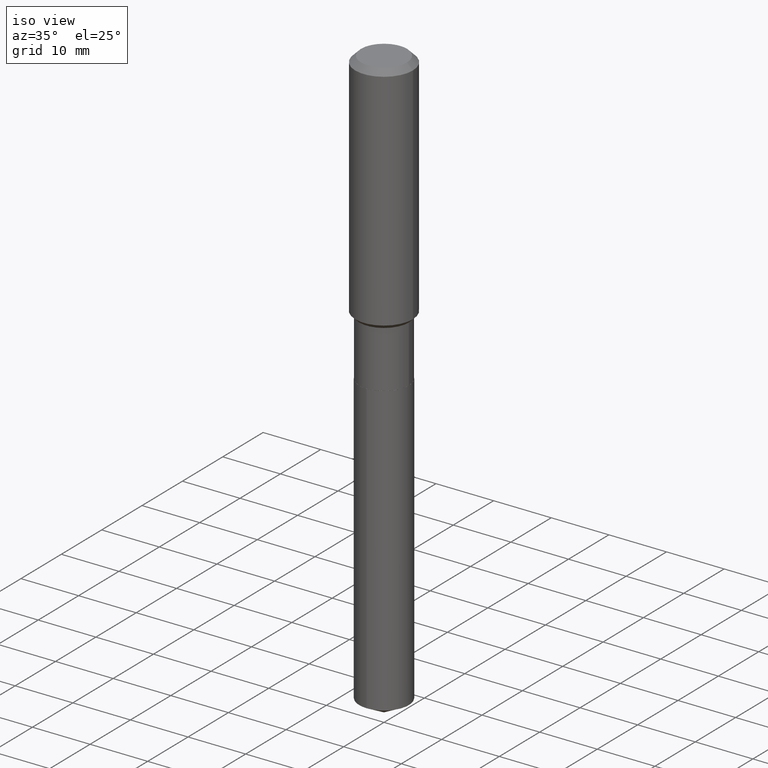
[diagram: clean part render]
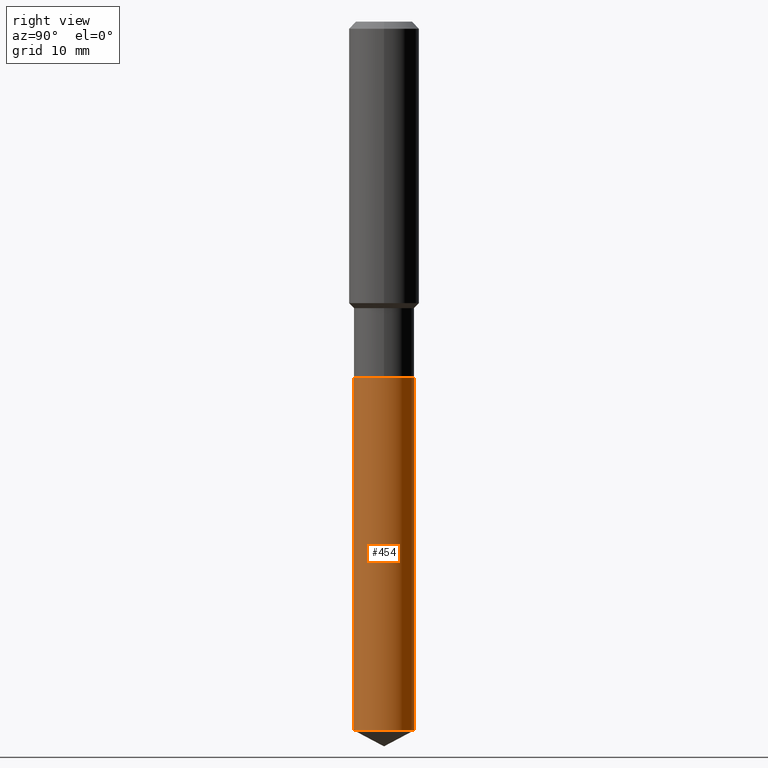
[diagram: tour spotlight — one face highlighted and labeled with its STEP entity id]
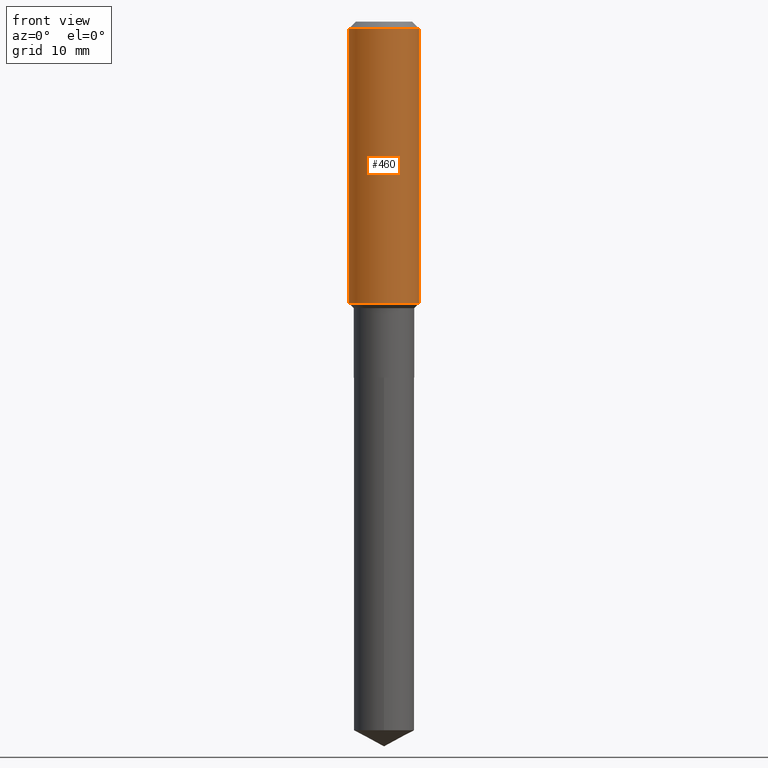
[diagram: tour spotlight — one face highlighted and labeled with its STEP entity id]
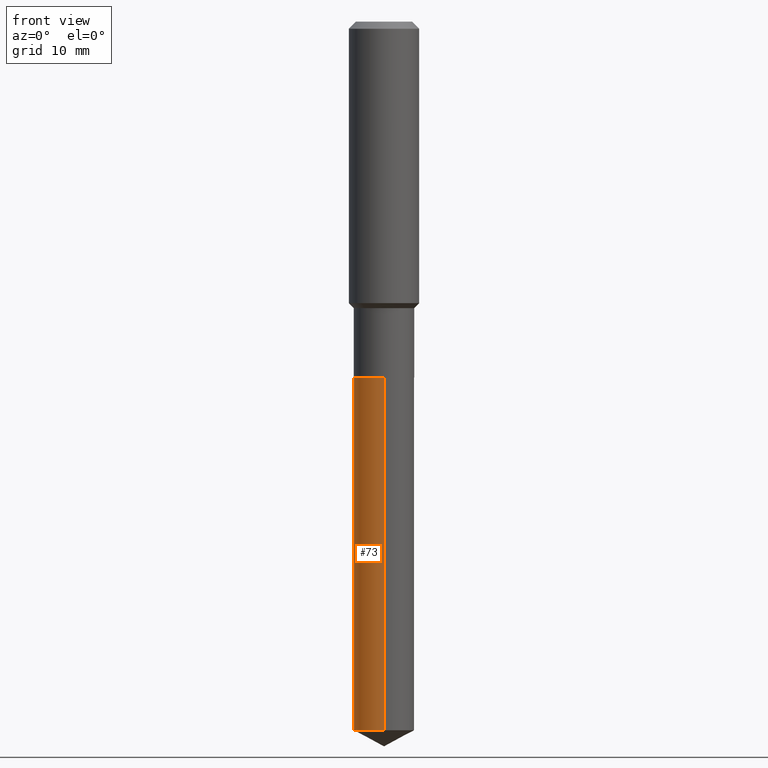
[diagram: tour spotlight — one face highlighted and labeled with its STEP entity id]
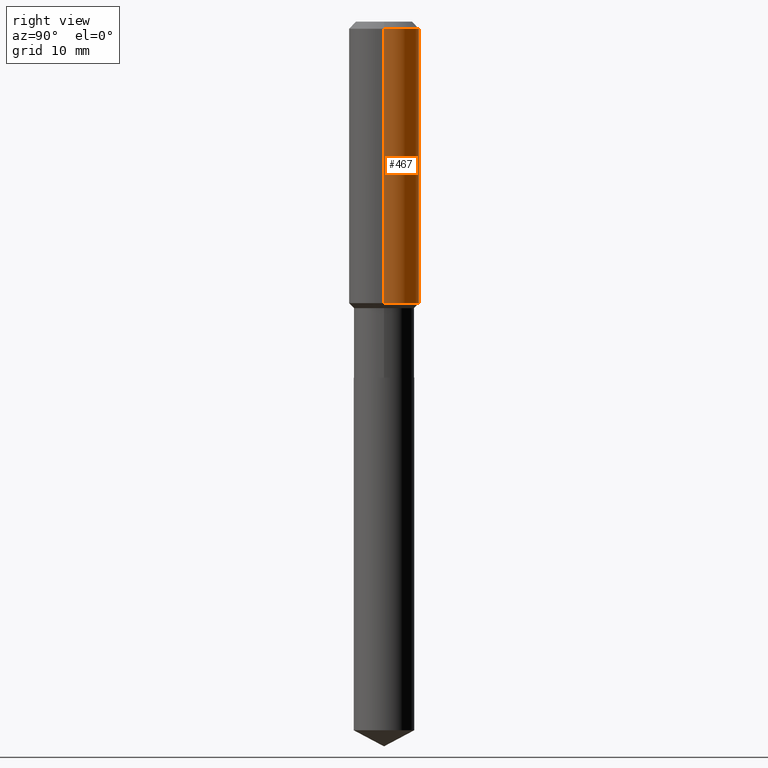
[diagram: tour spotlight — one face highlighted and labeled with its STEP entity id]
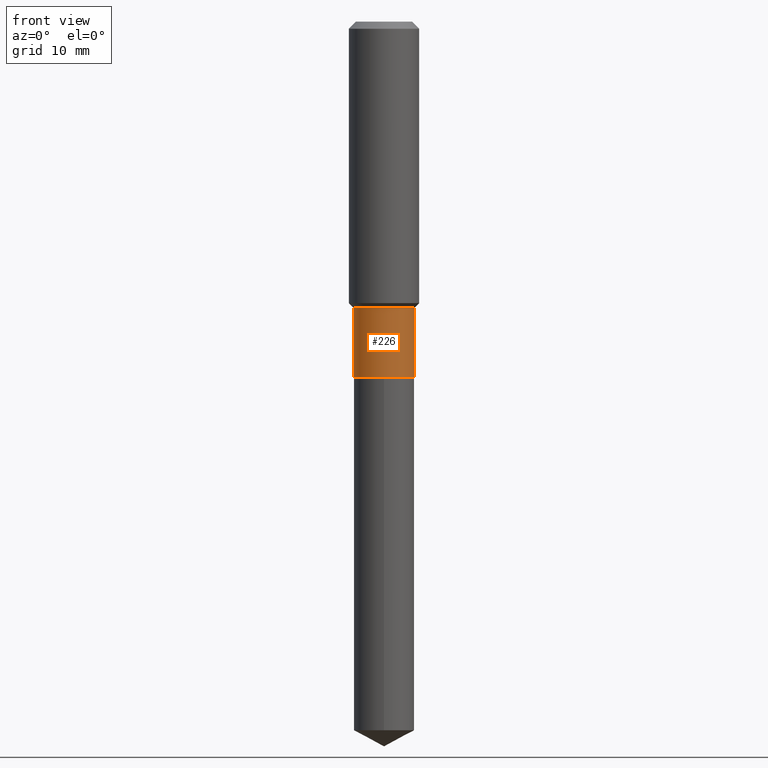
[diagram: tour spotlight — one face highlighted and labeled with its STEP entity id]
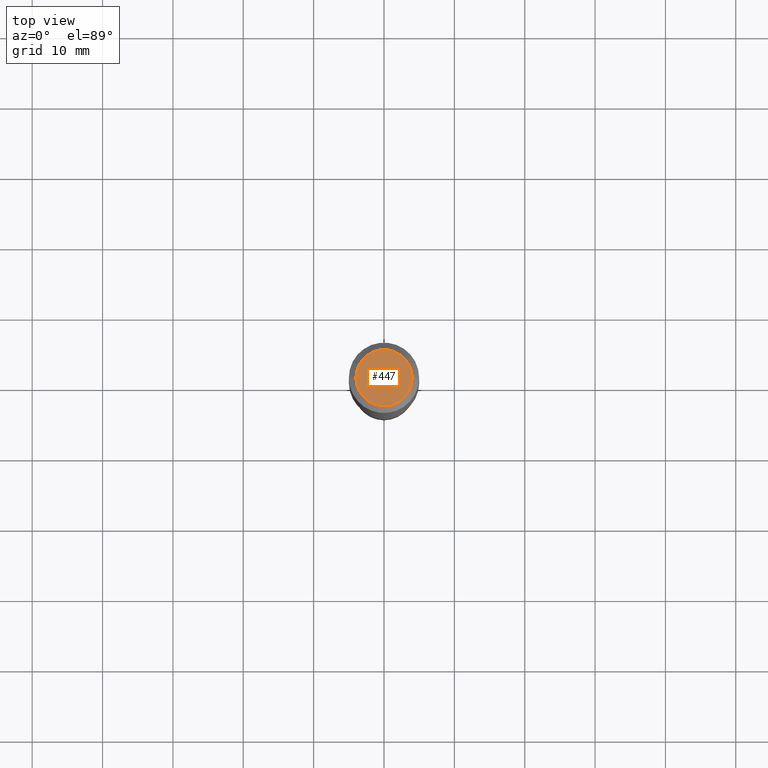
[diagram: tour spotlight — one face highlighted and labeled with its STEP entity id]
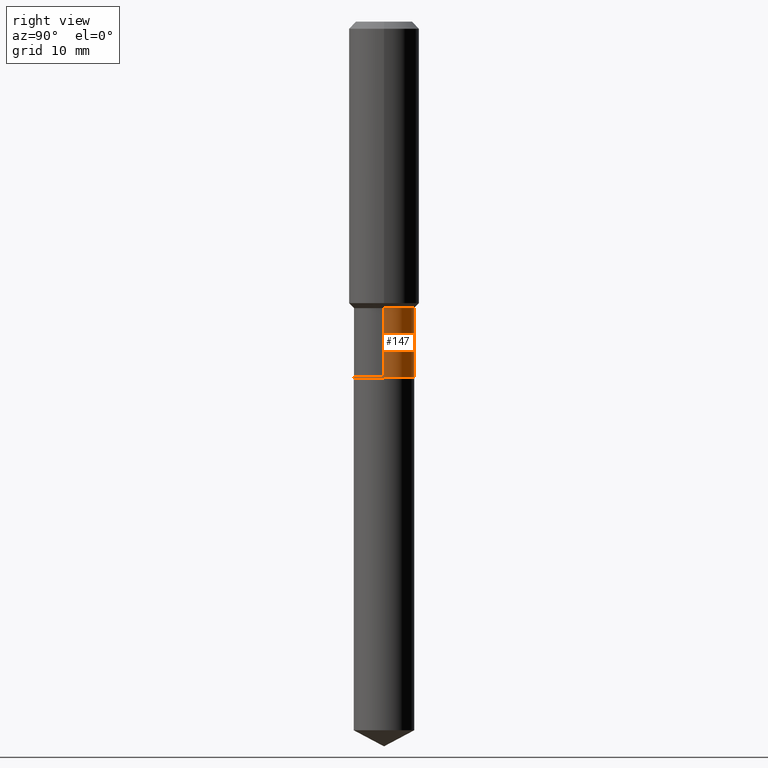
[diagram: tour spotlight — one face highlighted and labeled with its STEP entity id]
A machine part: a face-by-face anatomy tour. The part has 17 B-rep faces; the first image is the clean iso view, then the 7 largest visible faces are spotlighted one at a time (largest first), each with its STEP entity span.

Face 1 — right view, entity #454. In plain terms, the highlighted cylindrical surface (edge-blend (fillet) strip) has radius 4.3002 mm, axis along (-0, 0, 1).
Definition (entity closure, byte-faithful):
#13 = EDGE_CURVE ( 'NONE', #17, #63, #273, .T. ) ;
#17 = VERTEX_POINT ( 'NONE', #373 ) ;
#21 = EDGE_LOOP ( 'NONE', ( #398, #323, #388, #406 ) ) ;
#33 = VECTOR ( 'NONE', #299, 39.37007874015748143 ) ;
#43 = AXIS2_PLACEMENT_3D ( 'NONE', #252, #295, #218 ) ;
#63 = VERTEX_POINT ( 'NONE', #268 ) ;
#70 = FACE_OUTER_BOUND ( 'NONE', #21, .T. ) ;
#78 = EDGE_CURVE ( 'NONE', #63, #100, #305, .T. ) ;
#88 = DIRECTION ( 'NONE',  ( -6.982962677686265922E-15, -1.000000000000000000, 3.227227399485248397E-15 ) ) ;
#95 = DIRECTION ( 'NONE',  ( -6.982962677686265922E-15, -1.000000000000000000, 3.227227399485248397E-15 ) ) ;
#100 = VERTEX_POINT ( 'NONE', #153 ) ;
#132 = DIRECTION ( 'NONE',  ( -2.445494968417310331E-29, 3.491443873037610959E-15, 1.000000000000000000 ) ) ;
#153 = CARTESIAN_POINT ( 'NONE',  ( 1.202948851641946885E-15, 0.1692999999999930671, -1.992100000000000648 ) ) ;
#161 = CARTESIAN_POINT ( 'NONE',  ( -1.182215581332236300E-15, -0.1693000000000070004, -1.992099999999999538 ) ) ;
#163 = EDGE_CURVE ( 'NONE', #17, #200, #421, .T. ) ;
#196 = AXIS2_PLACEMENT_3D ( 'NONE', #424, #199, #88 ) ;
#199 = DIRECTION ( 'NONE',  ( -2.445494968417310331E-29, 3.491443873037610959E-15, 1.000000000000000000 ) ) ;
#200 = VERTEX_POINT ( 'NONE', #161 ) ;
#218 = DIRECTION ( 'NONE',  ( -6.982962677686265922E-15, -1.000000000000000000, 3.227227399485248397E-15 ) ) ;
#224 = CARTESIAN_POINT ( 'NONE',  ( 1.202948851641898370E-15, 0.1692999999999930671, -1.992100000000000648 ) ) ;
#252 = CARTESIAN_POINT ( 'NONE',  ( 9.696534967800186520E-29, -1.384393447037237794E-14, -3.965081593219712097 ) ) ;
#266 = CARTESIAN_POINT ( 'NONE',  ( -1.182215581332236300E-15, -0.1693000000000070004, -1.992099999999999538 ) ) ;
#268 = CARTESIAN_POINT ( 'NONE',  ( 1.202948851641947082E-15, 0.1692999999999862670, -3.965081593219712985 ) ) ;
#273 = CIRCLE ( 'NONE', #43, 0.1693000000000000338 ) ;
#281 = CIRCLE ( 'NONE', #196, 0.1693000000000000338 ) ;
#295 = DIRECTION ( 'NONE',  ( -2.445494968417310331E-29, 3.491443873037610959E-15, 1.000000000000000000 ) ) ;
#299 = DIRECTION ( 'NONE',  ( -2.445494968417310331E-29, 3.491443873037610959E-15, 1.000000000000000000 ) ) ;
#305 = LINE ( 'NONE', #224, #33 ) ;
#318 = CARTESIAN_POINT ( 'NONE',  ( 4.871618408801410518E-29, -6.955379975109430620E-15, -1.992099999999999982 ) ) ;
#323 = ORIENTED_EDGE ( 'NONE', *, *, #78, .T. ) ;
#325 = AXIS2_PLACEMENT_3D ( 'NONE', #318, #132, #95 ) ;
#370 = EDGE_CURVE ( 'NONE', #200, #100, #281, .T. ) ;
#373 = CARTESIAN_POINT ( 'NONE',  ( -1.182215581332188180E-15, -0.1693000000000138838, -3.965081593219711653 ) ) ;
#388 = ORIENTED_EDGE ( 'NONE', *, *, #370, .F. ) ;
#398 = ORIENTED_EDGE ( 'NONE', *, *, #13, .T. ) ;
#406 = ORIENTED_EDGE ( 'NONE', *, *, #163, .F. ) ;
#420 = DIRECTION ( 'NONE',  ( -2.445494968417310331E-29, 3.491443873037610959E-15, 1.000000000000000000 ) ) ;
#421 = LINE ( 'NONE', #266, #473 ) ;
#424 = CARTESIAN_POINT ( 'NONE',  ( 4.871618408801410518E-29, -6.955379975109430620E-15, -1.992099999999999982 ) ) ;
#438 = CYLINDRICAL_SURFACE ( 'NONE', #325, 0.1693000000000000338 ) ;
#454 = ADVANCED_FACE ( 'NONE', ( #70 ), #438, .T. ) ;
#473 = VECTOR ( 'NONE', #420, 39.37007874015748143 ) ;

Face 2 — front view, entity #460. In plain terms, the highlighted cylindrical surface (edge-blend (fillet) strip) has radius 5 mm, axis along (-0, 0, 1).
Definition (entity closure, byte-faithful):
#27 = CARTESIAN_POINT ( 'NONE',  ( -0.1968500000000001082, 1.398703375343757985E-15, -9.682923725166787881E-30 ) ) ;
#36 = EDGE_CURVE ( 'NONE', #321, #170, #258, .T. ) ;
#44 = CIRCLE ( 'NONE', #393, 0.1968500000000002192 ) ;
#81 = AXIS2_PLACEMENT_3D ( 'NONE', #93, #396, #241 ) ;
#93 = CARTESIAN_POINT ( 'NONE',  ( 9.627810689950954155E-31, -1.374596203102556547E-16, -0.03937000000000029365 ) ) ;
#97 = CARTESIAN_POINT ( 'NONE',  ( 3.851980190062517980E-29, -5.499606830878780813E-15, -1.575150000000000050 ) ) ;
#103 = ORIENTED_EDGE ( 'NONE', *, *, #220, .F. ) ;
#122 = CARTESIAN_POINT ( 'NONE',  ( 0.1968500000000000250, -1.512055823412797189E-15, -0.03937000000000029365 ) ) ;
#151 = CYLINDRICAL_SURFACE ( 'NONE', #312, 0.1968500000000001082 ) ;
#170 = VERTEX_POINT ( 'NONE', #122 ) ;
#186 = DIRECTION ( 'NONE',  ( -2.445468806185136877E-29, 3.491481338843145188E-15, 1.000000000000000000 ) ) ;
#220 = EDGE_CURVE ( 'NONE', #479, #392, #453, .T. ) ;
#222 = CARTESIAN_POINT ( 'NONE',  ( 0.1968500000000001082, -1.374596203102542397E-15, 9.598753983154305062E-30 ) ) ;
#235 = VECTOR ( 'NONE', #186, 39.37007874015748143 ) ;
#241 = DIRECTION ( 'NONE',  ( 1.000000000000000000, -6.982962677686265922E-15, 0.000000000000000000 ) ) ;
#258 = LINE ( 'NONE', #222, #235 ) ;
#262 = DIRECTION ( 'NONE',  ( 1.000000000000000000, -6.982962677686266711E-15, 4.876176775795935793E-29 ) ) ;
#291 = ORIENTED_EDGE ( 'NONE', *, *, #485, .F. ) ;
#294 = CIRCLE ( 'NONE', #81, 0.1968500000000000250 ) ;
#297 = CARTESIAN_POINT ( 'NONE',  ( -0.1968500000000000250, -1.419829850250760015E-15, -0.03937000000000029365 ) ) ;
#310 = CARTESIAN_POINT ( 'NONE',  ( 0.1968500000000002192, -6.874203033981323210E-15, -1.575150000000000050 ) ) ;
#312 = AXIS2_PLACEMENT_3D ( 'NONE', #339, #449, #262 ) ;
#316 = CARTESIAN_POINT ( 'NONE',  ( -0.1968500000000002192, -4.100903455535021447E-15, -1.575150000000000050 ) ) ;
#321 = VERTEX_POINT ( 'NONE', #310 ) ;
#333 = DIRECTION ( 'NONE',  ( 1.000000000000000000, -6.982962677686265922E-15, 0.000000000000000000 ) ) ;
#334 = ORIENTED_EDGE ( 'NONE', *, *, #36, .T. ) ;
#336 = EDGE_CURVE ( 'NONE', #479, #321, #44, .T. ) ;
#339 = CARTESIAN_POINT ( 'NONE',  ( 0.000000000000000000, 0.000000000000000000, 0.000000000000000000 ) ) ;
#371 = EDGE_LOOP ( 'NONE', ( #103, #442, #334, #291 ) ) ;
#392 = VERTEX_POINT ( 'NONE', #297 ) ;
#393 = AXIS2_PLACEMENT_3D ( 'NONE', #97, #428, #333 ) ;
#396 = DIRECTION ( 'NONE',  ( -2.445468806185136597E-29, 3.491481338843145583E-15, 1.000000000000000000 ) ) ;
#412 = FACE_OUTER_BOUND ( 'NONE', #371, .T. ) ;
#418 = VECTOR ( 'NONE', #468, 39.37007874015748143 ) ;
#428 = DIRECTION ( 'NONE',  ( -2.445468806185136597E-29, 3.491481338843145583E-15, 1.000000000000000000 ) ) ;
#442 = ORIENTED_EDGE ( 'NONE', *, *, #336, .T. ) ;
#449 = DIRECTION ( 'NONE',  ( -2.445468806185136597E-29, 3.491481338843145583E-15, 1.000000000000000000 ) ) ;
#453 = LINE ( 'NONE', #27, #418 ) ;
#460 = ADVANCED_FACE ( 'NONE', ( #412 ), #151, .T. ) ;
#468 = DIRECTION ( 'NONE',  ( -2.445468806185136877E-29, 3.491481338843145188E-15, 1.000000000000000000 ) ) ;
#479 = VERTEX_POINT ( 'NONE', #316 ) ;
#485 = EDGE_CURVE ( 'NONE', #392, #170, #294, .T. ) ;

Face 3 — front view, entity #73. In plain terms, the highlighted cylindrical surface (edge-blend (fillet) strip) has radius 4.3002 mm, axis along (-0, 0, 1).
Definition (entity closure, byte-faithful):
#2 = FACE_OUTER_BOUND ( 'NONE', #67, .T. ) ;
#9 = DIRECTION ( 'NONE',  ( -6.982962677686265922E-15, -1.000000000000000000, 3.227227399485248397E-15 ) ) ;
#17 = VERTEX_POINT ( 'NONE', #373 ) ;
#25 = ORIENTED_EDGE ( 'NONE', *, *, #248, .T. ) ;
#33 = VECTOR ( 'NONE', #299, 39.37007874015748143 ) ;
#63 = VERTEX_POINT ( 'NONE', #268 ) ;
#67 = EDGE_LOOP ( 'NONE', ( #107, #25, #140, #441 ) ) ;
#73 = ADVANCED_FACE ( 'NONE', ( #2 ), #265, .T. ) ;
#78 = EDGE_CURVE ( 'NONE', #63, #100, #305, .T. ) ;
#100 = VERTEX_POINT ( 'NONE', #153 ) ;
#107 = ORIENTED_EDGE ( 'NONE', *, *, #78, .F. ) ;
#125 = EDGE_CURVE ( 'NONE', #100, #200, #260, .T. ) ;
#140 = ORIENTED_EDGE ( 'NONE', *, *, #163, .T. ) ;
#153 = CARTESIAN_POINT ( 'NONE',  ( 1.202948851641946885E-15, 0.1692999999999930671, -1.992100000000000648 ) ) ;
#158 = DIRECTION ( 'NONE',  ( -2.445494968417310331E-29, 3.491443873037610959E-15, 1.000000000000000000 ) ) ;
#161 = CARTESIAN_POINT ( 'NONE',  ( -1.182215581332236300E-15, -0.1693000000000070004, -1.992099999999999538 ) ) ;
#163 = EDGE_CURVE ( 'NONE', #17, #200, #421, .T. ) ;
#183 = AXIS2_PLACEMENT_3D ( 'NONE', #191, #263, #379 ) ;
#191 = CARTESIAN_POINT ( 'NONE',  ( 4.871618408801410518E-29, -6.955379975109430620E-15, -1.992099999999999982 ) ) ;
#200 = VERTEX_POINT ( 'NONE', #161 ) ;
#202 = AXIS2_PLACEMENT_3D ( 'NONE', #215, #274, #9 ) ;
#211 = CIRCLE ( 'NONE', #202, 0.1693000000000000338 ) ;
#215 = CARTESIAN_POINT ( 'NONE',  ( 9.696534967800186520E-29, -1.384393447037237794E-14, -3.965081593219712097 ) ) ;
#224 = CARTESIAN_POINT ( 'NONE',  ( 1.202948851641898370E-15, 0.1692999999999930671, -1.992100000000000648 ) ) ;
#248 = EDGE_CURVE ( 'NONE', #63, #17, #211, .T. ) ;
#260 = CIRCLE ( 'NONE', #324, 0.1693000000000000338 ) ;
#263 = DIRECTION ( 'NONE',  ( -2.445494968417310331E-29, 3.491443873037610959E-15, 1.000000000000000000 ) ) ;
#265 = CYLINDRICAL_SURFACE ( 'NONE', #183, 0.1693000000000000338 ) ;
#266 = CARTESIAN_POINT ( 'NONE',  ( -1.182215581332236300E-15, -0.1693000000000070004, -1.992099999999999538 ) ) ;
#268 = CARTESIAN_POINT ( 'NONE',  ( 1.202948851641947082E-15, 0.1692999999999862670, -3.965081593219712985 ) ) ;
#274 = DIRECTION ( 'NONE',  ( -2.445494968417310331E-29, 3.491443873037610959E-15, 1.000000000000000000 ) ) ;
#299 = DIRECTION ( 'NONE',  ( -2.445494968417310331E-29, 3.491443873037610959E-15, 1.000000000000000000 ) ) ;
#303 = DIRECTION ( 'NONE',  ( -6.982962677686265922E-15, -1.000000000000000000, 3.227227399485248397E-15 ) ) ;
#305 = LINE ( 'NONE', #224, #33 ) ;
#324 = AXIS2_PLACEMENT_3D ( 'NONE', #459, #158, #303 ) ;
#373 = CARTESIAN_POINT ( 'NONE',  ( -1.182215581332188180E-15, -0.1693000000000138838, -3.965081593219711653 ) ) ;
#379 = DIRECTION ( 'NONE',  ( -6.982962677686265922E-15, -1.000000000000000000, 3.227227399485248397E-15 ) ) ;
#420 = DIRECTION ( 'NONE',  ( -2.445494968417310331E-29, 3.491443873037610959E-15, 1.000000000000000000 ) ) ;
#421 = LINE ( 'NONE', #266, #473 ) ;
#441 = ORIENTED_EDGE ( 'NONE', *, *, #125, .F. ) ;
#459 = CARTESIAN_POINT ( 'NONE',  ( 4.871618408801410518E-29, -6.955379975109430620E-15, -1.992099999999999982 ) ) ;
#473 = VECTOR ( 'NONE', #420, 39.37007874015748143 ) ;

Face 4 — right view, entity #467. In plain terms, the highlighted cylindrical surface (edge-blend (fillet) strip) has radius 5 mm, axis along (-0, 0, 1).
Definition (entity closure, byte-faithful):
#12 = EDGE_LOOP ( 'NONE', ( #427, #86, #331, #165 ) ) ;
#22 = AXIS2_PLACEMENT_3D ( 'NONE', #400, #137, #109 ) ;
#27 = CARTESIAN_POINT ( 'NONE',  ( -0.1968500000000001082, 1.398703375343757985E-15, -9.682923725166787881E-30 ) ) ;
#36 = EDGE_CURVE ( 'NONE', #321, #170, #258, .T. ) ;
#53 = AXIS2_PLACEMENT_3D ( 'NONE', #250, #353, #315 ) ;
#86 = ORIENTED_EDGE ( 'NONE', *, *, #220, .T. ) ;
#109 = DIRECTION ( 'NONE',  ( 1.000000000000000000, -6.982962677686265922E-15, 0.000000000000000000 ) ) ;
#115 = CIRCLE ( 'NONE', #22, 0.1968500000000000250 ) ;
#122 = CARTESIAN_POINT ( 'NONE',  ( 0.1968500000000000250, -1.512055823412797189E-15, -0.03937000000000029365 ) ) ;
#137 = DIRECTION ( 'NONE',  ( -2.445468806185136597E-29, 3.491481338843145583E-15, 1.000000000000000000 ) ) ;
#139 = DIRECTION ( 'NONE',  ( 1.000000000000000000, -6.982962677686266711E-15, 4.876176775795935793E-29 ) ) ;
#165 = ORIENTED_EDGE ( 'NONE', *, *, #36, .F. ) ;
#170 = VERTEX_POINT ( 'NONE', #122 ) ;
#186 = DIRECTION ( 'NONE',  ( -2.445468806185136877E-29, 3.491481338843145188E-15, 1.000000000000000000 ) ) ;
#220 = EDGE_CURVE ( 'NONE', #479, #392, #453, .T. ) ;
#222 = CARTESIAN_POINT ( 'NONE',  ( 0.1968500000000001082, -1.374596203102542397E-15, 9.598753983154305062E-30 ) ) ;
#235 = VECTOR ( 'NONE', #186, 39.37007874015748143 ) ;
#243 = CIRCLE ( 'NONE', #53, 0.1968500000000002192 ) ;
#250 = CARTESIAN_POINT ( 'NONE',  ( 3.851980190062517980E-29, -5.499606830878780813E-15, -1.575150000000000050 ) ) ;
#258 = LINE ( 'NONE', #222, #235 ) ;
#264 = EDGE_CURVE ( 'NONE', #321, #479, #243, .T. ) ;
#297 = CARTESIAN_POINT ( 'NONE',  ( -0.1968500000000000250, -1.419829850250760015E-15, -0.03937000000000029365 ) ) ;
#310 = CARTESIAN_POINT ( 'NONE',  ( 0.1968500000000002192, -6.874203033981323210E-15, -1.575150000000000050 ) ) ;
#315 = DIRECTION ( 'NONE',  ( 1.000000000000000000, -6.982962677686265922E-15, 0.000000000000000000 ) ) ;
#316 = CARTESIAN_POINT ( 'NONE',  ( -0.1968500000000002192, -4.100903455535021447E-15, -1.575150000000000050 ) ) ;
#321 = VERTEX_POINT ( 'NONE', #310 ) ;
#327 = CYLINDRICAL_SURFACE ( 'NONE', #378, 0.1968500000000001082 ) ;
#331 = ORIENTED_EDGE ( 'NONE', *, *, #404, .F. ) ;
#353 = DIRECTION ( 'NONE',  ( -2.445468806185136597E-29, 3.491481338843145583E-15, 1.000000000000000000 ) ) ;
#378 = AXIS2_PLACEMENT_3D ( 'NONE', #470, #475, #139 ) ;
#392 = VERTEX_POINT ( 'NONE', #297 ) ;
#400 = CARTESIAN_POINT ( 'NONE',  ( 9.627810689950954155E-31, -1.374596203102556547E-16, -0.03937000000000029365 ) ) ;
#404 = EDGE_CURVE ( 'NONE', #170, #392, #115, .T. ) ;
#418 = VECTOR ( 'NONE', #468, 39.37007874015748143 ) ;
#427 = ORIENTED_EDGE ( 'NONE', *, *, #264, .T. ) ;
#453 = LINE ( 'NONE', #27, #418 ) ;
#467 = ADVANCED_FACE ( 'NONE', ( #487 ), #327, .T. ) ;
#468 = DIRECTION ( 'NONE',  ( -2.445468806185136877E-29, 3.491481338843145188E-15, 1.000000000000000000 ) ) ;
#470 = CARTESIAN_POINT ( 'NONE',  ( 0.000000000000000000, 0.000000000000000000, 0.000000000000000000 ) ) ;
#475 = DIRECTION ( 'NONE',  ( -2.445468806185136597E-29, 3.491481338843145583E-15, 1.000000000000000000 ) ) ;
#479 = VERTEX_POINT ( 'NONE', #316 ) ;
#487 = FACE_OUTER_BOUND ( 'NONE', #12, .T. ) ;

Face 5 — front view, entity #226. In plain terms, the highlighted cylindrical surface (edge-blend (fillet) strip) has radius 4.3002 mm, axis along (-0, 0, 1).
Definition (entity closure, byte-faithful):
#4 = AXIS2_PLACEMENT_3D ( 'NONE', #79, #231, #416 ) ;
#20 = EDGE_CURVE ( 'NONE', #311, #213, #65, .T. ) ;
#31 = DIRECTION ( 'NONE',  ( -2.445468806185136877E-29, 3.491481338843145188E-15, 1.000000000000000000 ) ) ;
#47 = EDGE_LOOP ( 'NONE', ( #360, #320, #462, #472 ) ) ;
#49 = DIRECTION ( 'NONE',  ( 1.000000000000000000, -6.982962677686265922E-15, 4.876176775795935232E-29 ) ) ;
#52 = DIRECTION ( 'NONE',  ( -2.445468806185136597E-29, 3.491481338843145583E-15, 1.000000000000000000 ) ) ;
#54 = LINE ( 'NONE', #322, #175 ) ;
#65 = CIRCLE ( 'NONE', #355, 0.1693000000000000338 ) ;
#79 = CARTESIAN_POINT ( 'NONE',  ( 3.919352855672918562E-29, -5.595797141763909209E-15, -1.602700000000000014 ) ) ;
#90 = CARTESIAN_POINT ( 'NONE',  ( 0.000000000000000000, 0.000000000000000000, 0.000000000000000000 ) ) ;
#106 = VECTOR ( 'NONE', #282, 39.37007874015748143 ) ;
#118 = EDGE_CURVE ( 'NONE', #141, #329, #413, .T. ) ;
#141 = VERTEX_POINT ( 'NONE', #347 ) ;
#169 = LINE ( 'NONE', #365, #106 ) ;
#175 = VECTOR ( 'NONE', #31, 39.37007874015748143 ) ;
#213 = VERTEX_POINT ( 'NONE', #343 ) ;
#226 = ADVANCED_FACE ( 'NONE', ( #368 ), #389, .T. ) ;
#231 = DIRECTION ( 'NONE',  ( -2.445468806185136597E-29, 3.491481338843145583E-15, 1.000000000000000000 ) ) ;
#278 = CARTESIAN_POINT ( 'NONE',  ( -0.1693000000000000338, -5.071766836460109505E-15, -1.991600000000000037 ) ) ;
#282 = DIRECTION ( 'NONE',  ( -2.445468806185136877E-29, 3.491481338843145188E-15, 1.000000000000000000 ) ) ;
#311 = VERTEX_POINT ( 'NONE', #278 ) ;
#320 = ORIENTED_EDGE ( 'NONE', *, *, #20, .T. ) ;
#322 = CARTESIAN_POINT ( 'NONE',  ( -0.1693000000000000338, 1.202948851641849855E-15, -8.327757107801555711E-30 ) ) ;
#328 = CARTESIAN_POINT ( 'NONE',  ( 4.870395674398318837E-29, -6.953634234440009116E-15, -1.991600000000000037 ) ) ;
#329 = VERTEX_POINT ( 'NONE', #431 ) ;
#343 = CARTESIAN_POINT ( 'NONE',  ( 0.1693000000000000338, -8.135849815772293932E-15, -1.991600000000000037 ) ) ;
#347 = CARTESIAN_POINT ( 'NONE',  ( -0.1692999999999999783, -5.071766836460109505E-15, -1.602700000000000014 ) ) ;
#355 = AXIS2_PLACEMENT_3D ( 'NONE', #328, #445, #405 ) ;
#360 = ORIENTED_EDGE ( 'NONE', *, *, #391, .F. ) ;
#365 = CARTESIAN_POINT ( 'NONE',  ( 0.1693000000000000338, -1.182215581332285012E-15, 8.255367281422519824E-30 ) ) ;
#368 = FACE_OUTER_BOUND ( 'NONE', #47, .T. ) ;
#389 = CYLINDRICAL_SURFACE ( 'NONE', #484, 0.1693000000000000338 ) ;
#391 = EDGE_CURVE ( 'NONE', #311, #141, #54, .T. ) ;
#405 = DIRECTION ( 'NONE',  ( 1.000000000000000000, -6.982962677686263555E-15, 0.000000000000000000 ) ) ;
#413 = CIRCLE ( 'NONE', #4, 0.1692999999999999783 ) ;
#416 = DIRECTION ( 'NONE',  ( 1.000000000000000000, -6.982962677686265922E-15, 0.000000000000000000 ) ) ;
#431 = CARTESIAN_POINT ( 'NONE',  ( 0.1692999999999999783, -6.778012723096194024E-15, -1.602700000000000014 ) ) ;
#445 = DIRECTION ( 'NONE',  ( -2.445468806185136597E-29, 3.491481338843145583E-15, 1.000000000000000000 ) ) ;
#462 = ORIENTED_EDGE ( 'NONE', *, *, #476, .T. ) ;
#472 = ORIENTED_EDGE ( 'NONE', *, *, #118, .F. ) ;
#476 = EDGE_CURVE ( 'NONE', #213, #329, #169, .T. ) ;
#484 = AXIS2_PLACEMENT_3D ( 'NONE', #90, #52, #49 ) ;

Face 6 — top view, entity #447. In plain terms, the highlighted planar face has unit normal (0, -0, -1).
Definition (entity closure, byte-faithful):
#6 = AXIS2_PLACEMENT_3D ( 'NONE', #457, #85, #381 ) ;
#18 = DIRECTION ( 'NONE',  ( -1.000000000000000000, 6.982962677686265922E-15, -4.876176775795935793E-29 ) ) ;
#77 = CARTESIAN_POINT ( 'NONE',  ( -9.427742298522567634E-47, 1.346031739168368355E-32, 3.855188123715870730E-18 ) ) ;
#85 = DIRECTION ( 'NONE',  ( -2.445468806185136597E-29, 3.491481338843145583E-15, 1.000000000000000000 ) ) ;
#111 = ORIENTED_EDGE ( 'NONE', *, *, #152, .T. ) ;
#113 = VERTEX_POINT ( 'NONE', #155 ) ;
#119 = DIRECTION ( 'NONE',  ( -2.445468806185136597E-29, 3.491481338843145583E-15, 1.000000000000000000 ) ) ;
#126 = AXIS2_PLACEMENT_3D ( 'NONE', #407, #288, #18 ) ;
#143 = PLANE ( 'NONE',  #126 ) ;
#152 = EDGE_CURVE ( 'NONE', #409, #113, #306, .T. ) ;
#155 = CARTESIAN_POINT ( 'NONE',  ( -0.1574800000000000089, 1.168406772637159618E-15, 3.855188123707939751E-18 ) ) ;
#192 = EDGE_CURVE ( 'NONE', #113, #409, #456, .T. ) ;
#194 = DIRECTION ( 'NONE',  ( 1.000000000000000000, -6.982962677686265922E-15, 4.876223630392693006E-29 ) ) ;
#242 = EDGE_LOOP ( 'NONE', ( #362, #111 ) ) ;
#288 = DIRECTION ( 'NONE',  ( 2.438088387897960049E-29, -3.491481338843145188E-15, -1.000000000000000000 ) ) ;
#306 = CIRCLE ( 'NONE', #414, 0.1574800000000000089 ) ;
#362 = ORIENTED_EDGE ( 'NONE', *, *, #192, .T. ) ;
#381 = DIRECTION ( 'NONE',  ( 1.000000000000000000, -6.982962677686265922E-15, 4.876223630392693006E-29 ) ) ;
#407 = CARTESIAN_POINT ( 'NONE',  ( -4.713871149261283817E-47, 6.730158695841841775E-33, 1.927594061857935365E-18 ) ) ;
#409 = VERTEX_POINT ( 'NONE', #411 ) ;
#411 = CARTESIAN_POINT ( 'NONE',  ( 0.1574800000000000089, -1.284169937930321189E-15, 3.855188123724205385E-18 ) ) ;
#414 = AXIS2_PLACEMENT_3D ( 'NONE', #77, #119, #194 ) ;
#447 = ADVANCED_FACE ( 'NONE', ( #478 ), #143, .F. ) ;
#456 = CIRCLE ( 'NONE', #6, 0.1574800000000000089 ) ;
#457 = CARTESIAN_POINT ( 'NONE',  ( -9.427742298522567634E-47, 1.346031739168368355E-32, 3.855188123715870730E-18 ) ) ;
#478 = FACE_OUTER_BOUND ( 'NONE', #242, .T. ) ;

Face 7 — right view, entity #147. In plain terms, the highlighted cylindrical surface (edge-blend (fillet) strip) has radius 4.3002 mm, axis along (-0, 0, 1).
Definition (entity closure, byte-faithful):
#7 = DIRECTION ( 'NONE',  ( -2.445468806185136597E-29, 3.491481338843145583E-15, 1.000000000000000000 ) ) ;
#31 = DIRECTION ( 'NONE',  ( -2.445468806185136877E-29, 3.491481338843145188E-15, 1.000000000000000000 ) ) ;
#35 = DIRECTION ( 'NONE',  ( 1.000000000000000000, -6.982962677686265922E-15, 0.000000000000000000 ) ) ;
#39 = FACE_OUTER_BOUND ( 'NONE', #466, .T. ) ;
#42 = CARTESIAN_POINT ( 'NONE',  ( 3.919352855672918562E-29, -5.595797141763909209E-15, -1.602700000000000014 ) ) ;
#54 = LINE ( 'NONE', #322, #175 ) ;
#64 = CARTESIAN_POINT ( 'NONE',  ( 4.870395674398318837E-29, -6.953634234440009116E-15, -1.991600000000000037 ) ) ;
#66 = CIRCLE ( 'NONE', #300, 0.1692999999999999783 ) ;
#91 = ORIENTED_EDGE ( 'NONE', *, *, #440, .T. ) ;
#106 = VECTOR ( 'NONE', #282, 39.37007874015748143 ) ;
#121 = CARTESIAN_POINT ( 'NONE',  ( 0.000000000000000000, 0.000000000000000000, 0.000000000000000000 ) ) ;
#141 = VERTEX_POINT ( 'NONE', #347 ) ;
#147 = ADVANCED_FACE ( 'NONE', ( #39 ), #232, .T. ) ;
#169 = LINE ( 'NONE', #365, #106 ) ;
#172 = ORIENTED_EDGE ( 'NONE', *, *, #476, .F. ) ;
#175 = VECTOR ( 'NONE', #31, 39.37007874015748143 ) ;
#197 = EDGE_CURVE ( 'NONE', #329, #141, #66, .T. ) ;
#213 = VERTEX_POINT ( 'NONE', #343 ) ;
#225 = DIRECTION ( 'NONE',  ( -2.445468806185136597E-29, 3.491481338843145583E-15, 1.000000000000000000 ) ) ;
#232 = CYLINDRICAL_SURFACE ( 'NONE', #384, 0.1693000000000000338 ) ;
#278 = CARTESIAN_POINT ( 'NONE',  ( -0.1693000000000000338, -5.071766836460109505E-15, -1.991600000000000037 ) ) ;
#282 = DIRECTION ( 'NONE',  ( -2.445468806185136877E-29, 3.491481338843145188E-15, 1.000000000000000000 ) ) ;
#292 = DIRECTION ( 'NONE',  ( 1.000000000000000000, -6.982962677686263555E-15, 0.000000000000000000 ) ) ;
#300 = AXIS2_PLACEMENT_3D ( 'NONE', #42, #7, #35 ) ;
#311 = VERTEX_POINT ( 'NONE', #278 ) ;
#322 = CARTESIAN_POINT ( 'NONE',  ( -0.1693000000000000338, 1.202948851641849855E-15, -8.327757107801555711E-30 ) ) ;
#329 = VERTEX_POINT ( 'NONE', #431 ) ;
#343 = CARTESIAN_POINT ( 'NONE',  ( 0.1693000000000000338, -8.135849815772293932E-15, -1.991600000000000037 ) ) ;
#347 = CARTESIAN_POINT ( 'NONE',  ( -0.1692999999999999783, -5.071766836460109505E-15, -1.602700000000000014 ) ) ;
#349 = AXIS2_PLACEMENT_3D ( 'NONE', #64, #433, #292 ) ;
#365 = CARTESIAN_POINT ( 'NONE',  ( 0.1693000000000000338, -1.182215581332285012E-15, 8.255367281422519824E-30 ) ) ;
#384 = AXIS2_PLACEMENT_3D ( 'NONE', #121, #225, #455 ) ;
#391 = EDGE_CURVE ( 'NONE', #311, #141, #54, .T. ) ;
#401 = ORIENTED_EDGE ( 'NONE', *, *, #197, .F. ) ;
#430 = ORIENTED_EDGE ( 'NONE', *, *, #391, .T. ) ;
#431 = CARTESIAN_POINT ( 'NONE',  ( 0.1692999999999999783, -6.778012723096194024E-15, -1.602700000000000014 ) ) ;
#433 = DIRECTION ( 'NONE',  ( -2.445468806185136597E-29, 3.491481338843145583E-15, 1.000000000000000000 ) ) ;
#440 = EDGE_CURVE ( 'NONE', #213, #311, #444, .T. ) ;
#444 = CIRCLE ( 'NONE', #349, 0.1693000000000000338 ) ;
#455 = DIRECTION ( 'NONE',  ( 1.000000000000000000, -6.982962677686265922E-15, 4.876176775795935232E-29 ) ) ;
#466 = EDGE_LOOP ( 'NONE', ( #91, #430, #401, #172 ) ) ;
#476 = EDGE_CURVE ( 'NONE', #213, #329, #169, .T. ) ;